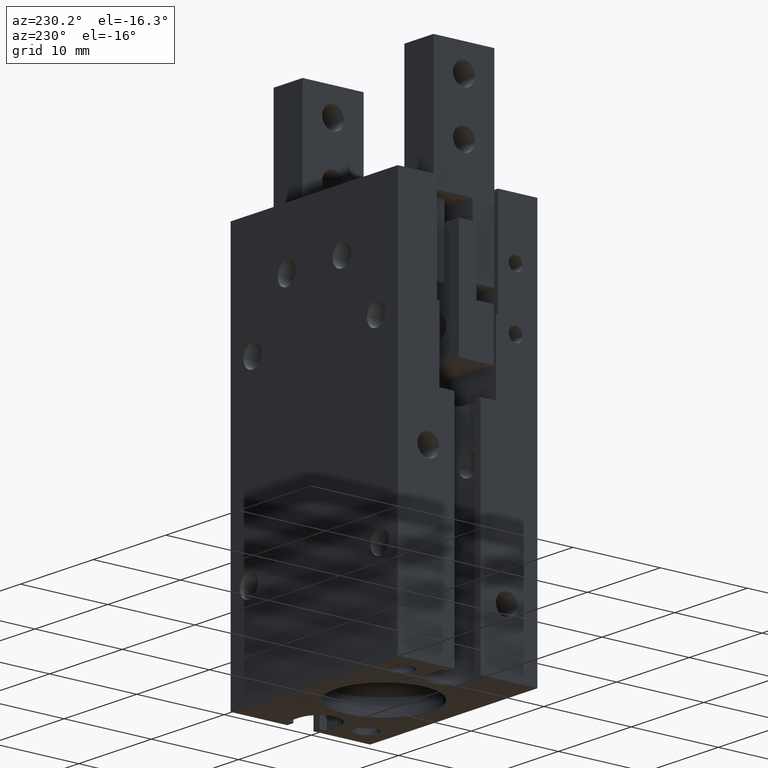
[diagram: clean part render]
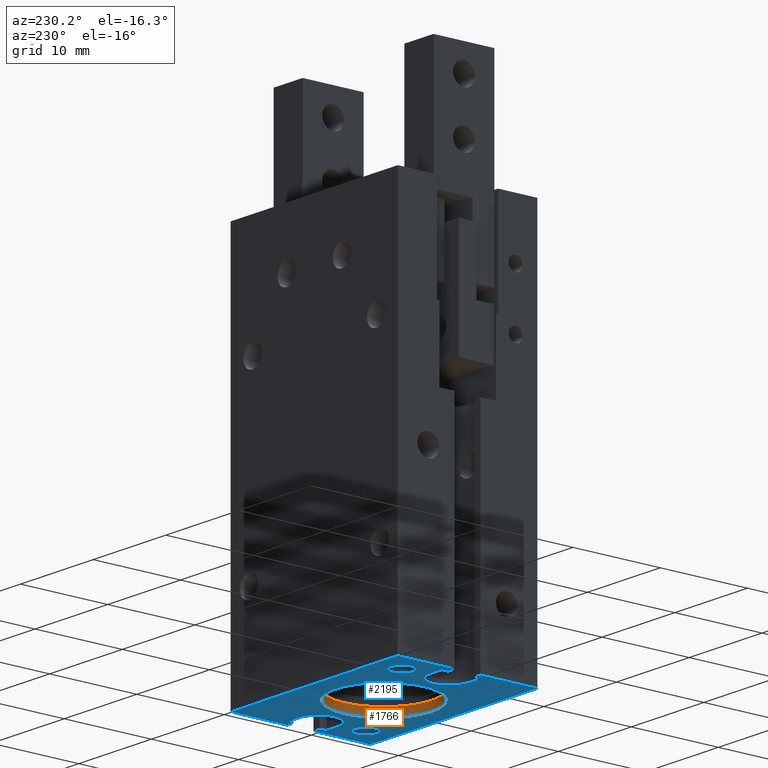
[diagram: same view with the hole feature highlighted: cylindrical wall and planar end face, labeled with their STEP entity ids]
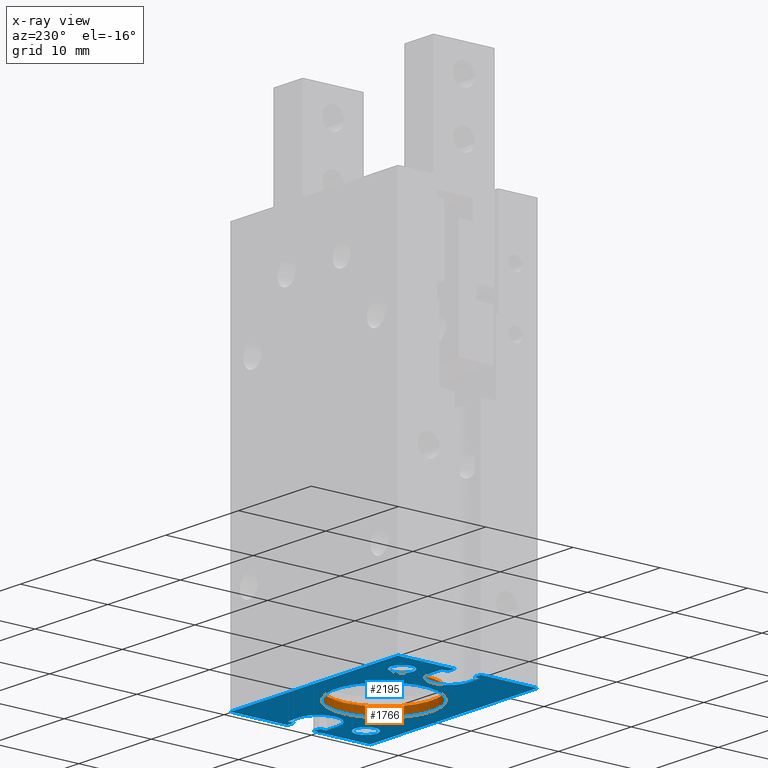
[diagram: x-ray of the same camera — body ghosted, the hole faces saturated]
A machine part, auxiliary view. The highlighted faces form one hole feature of diameter 11 mm: the cylindrical wall (entity #1766, orange) and its adjacent planar end face (entity #2195, blue) — they share a circular edge in the B-rep.
The next image is the same camera in x-ray (body ghosted, the hole faces saturated) — the bore reads through the body.
Wall:
#1681=CARTESIAN_POINT('',(1.88548724333343E-014,5.5,1.));
#1682=VERTEX_POINT('Vertex66',#1681);
#1683=CARTESIAN_POINT('',(5.5,-1.88284404878709E-014,1.));
#1684=VERTEX_POINT('Vertex248',#1683);
#1685=CARTESIAN_POINT('',(8.88178419700125E-016,-4.82947015711943E-015,1.));
#1686=DIRECTION('',(8.07434927000115E-017,4.03717463500055E-017,-1.));
#1687=DIRECTION('',(3.26667163884258E-015,1.,8.07434927000113E-017));
#1688=AXIS2_PLACEMENT_3D('',#1685,#1686,#1687);
#1689=CIRCLE('nurbsCrv631',#1688,5.5);
#1690=EDGE_CURVE('Edge366',#1682,#1684,#1689,.T.);
#1692=CARTESIAN_POINT('',(6.03221176713002E-015,-2.05391259555654E-015,1.));
#1693=DIRECTION('',(8.07434927000115E-017,4.03717463500055E-017,-1.));
#1694=DIRECTION('',(1.,-3.04991416223898E-015,8.07434927000114E-017));
#1695=AXIS2_PLACEMENT_3D('',#1692,#1693,#1694);
#1696=CIRCLE('nurbsCrv632',#1695,5.5);
#1697=EDGE_CURVE('Edge367',#1684,#1682,#1696,.T.);
#1737=ORIENTED_EDGE('Edgeuse732',*,*,#1690,.F.);
#1738=ORIENTED_EDGE('Edgeuse734',*,*,#1697,.F.);
#1739=EDGE_LOOP('',(#1737,#1738));
#1740=FACE_BOUND('',#1739,.T.);
#1741=CARTESIAN_POINT('',(-1.64932722962445E-014,-5.5,-2.57815461158371E-016));
#1742=VERTEX_POINT('Vertex68',#1741);
#1743=CARTESIAN_POINT('',(5.5,-1.70805349204803E-014,0.));
#1744=VERTEX_POINT('Vertex249',#1743);
#1745=CARTESIAN_POINT('',(7.21644966006352E-016,-1.83186799063151E-015,0.));
#1746=DIRECTION('',(0.,0.,1.));
#1747=DIRECTION('',(-3.12998495677288E-015,-1.,0.));
#1748=AXIS2_PLACEMENT_3D('',#1745,#1746,#1747);
#1749=CIRCLE('nurbsCrv635',#1748,5.5);
#1750=EDGE_CURVE('Edge368',#1742,#1744,#1749,.T.);
#1751=ORIENTED_EDGE('Edgeuse737',*,*,#1750,.F.);
#1752=CARTESIAN_POINT('',(-1.68383825401482E-015,-1.66533453693773E-015,0.));
#1753=DIRECTION('',(0.,0.,1.));
#1754=DIRECTION('',(1.,-2.80276370609865E-015,0.));
#1755=AXIS2_PLACEMENT_3D('',#1752,#1753,#1754);
#1756=CIRCLE('nurbsCrv636',#1755,5.5);
#1757=EDGE_CURVE('Edge369',#1744,#1742,#1756,.T.);
#1758=ORIENTED_EDGE('Edgeuse739',*,*,#1757,.F.);
#1759=EDGE_LOOP('',(#1751,#1758));
#1760=FACE_BOUND('',#1759,.T.);
#1761=CARTESIAN_POINT('',(1.23512311489549E-015,-3.99680288865056E-015,
-0.0500000000000007));
#1762=DIRECTION('',(-7.19121731859478E-017,-4.54182146437562E-017,1.));
#1763=DIRECTION('',(1.,-3.44495703600473E-015,7.19121731859477E-017));
#1764=AXIS2_PLACEMENT_3D('',#1761,#1762,#1763);
#1765=CYLINDRICAL_SURFACE('nurbsSrf42',#1764,5.5);
#1766=ADVANCED_FACE('Face42',(#1740,#1760),#1765,.F.);
End face:
#1651=CARTESIAN_POINT('',(-7.24999999999999,5.00000000000003,0.));
#1652=VERTEX_POINT('Vertex244',#1651);
#1653=CARTESIAN_POINT('',(-9.74999999999999,5.00000000000004,
-5.96995597488408E-016));
#1654=VERTEX_POINT('Vertex65',#1653);
#1655=CARTESIAN_POINT('',(-8.49999999999999,5.00000000000003,0.));
#1656=DIRECTION('',(0.,0.,-1.));
#1657=DIRECTION('',(1.,-4.26325641456061E-015,0.));
#1658=AXIS2_PLACEMENT_3D('',#1655,#1656,#1657);
#1659=CIRCLE('nurbsCrv599',#1658,1.25);
#1660=EDGE_CURVE('Edge357',#1652,#1654,#1659,.T.);
#1662=CARTESIAN_POINT('',(-8.49999999999999,5.00000000000003,0.));
#1663=DIRECTION('',(0.,0.,-1.));
#1664=DIRECTION('',(-1.,3.5527136788005E-015,0.));
#1665=AXIS2_PLACEMENT_3D('',#1662,#1663,#1664);
#1666=CIRCLE('nurbsCrv598',#1665,1.25);
#1667=EDGE_CURVE('Edge356',#1654,#1652,#1666,.T.);
#1711=CARTESIAN_POINT('',(9.74999999999998,-5.00000000000003,0.));
#1712=VERTEX_POINT('Vertex246',#1711);
#1713=CARTESIAN_POINT('',(7.24999999999998,-5.00000000000002,
-3.06846941814884E-015));
#1714=VERTEX_POINT('Vertex67',#1713);
#1715=CARTESIAN_POINT('',(8.49999999999998,-5.00000000000002,0.));
#1716=DIRECTION('',(0.,0.,-1.));
#1717=DIRECTION('',(1.,-5.6843418860808E-015,0.));
#1718=AXIS2_PLACEMENT_3D('',#1715,#1716,#1717);
#1719=CIRCLE('nurbsCrv617',#1718,1.25);
#1720=EDGE_CURVE('Edge362',#1712,#1714,#1719,.T.);
#1722=CARTESIAN_POINT('',(8.49999999999999,-5.00000000000003,0.));
#1723=DIRECTION('',(0.,0.,-1.));
#1724=DIRECTION('',(-1.,5.6843418860808E-015,0.));
#1725=AXIS2_PLACEMENT_3D('',#1722,#1723,#1724);
#1726=CIRCLE('nurbsCrv616',#1725,1.25);
#1727=EDGE_CURVE('Edge361',#1714,#1712,#1726,.T.);
#1741=CARTESIAN_POINT('',(-1.64932722962445E-014,-5.5,-2.57815461158371E-016));
#1742=VERTEX_POINT('Vertex68',#1741);
#1743=CARTESIAN_POINT('',(5.5,-1.70805349204803E-014,0.));
#1744=VERTEX_POINT('Vertex249',#1743);
#1745=CARTESIAN_POINT('',(7.21644966006352E-016,-1.83186799063151E-015,0.));
#1746=DIRECTION('',(0.,0.,1.));
#1747=DIRECTION('',(-3.12998495677288E-015,-1.,0.));
#1748=AXIS2_PLACEMENT_3D('',#1745,#1746,#1747);
#1749=CIRCLE('nurbsCrv635',#1748,5.5);
#1750=EDGE_CURVE('Edge368',#1742,#1744,#1749,.T.);
#1752=CARTESIAN_POINT('',(-1.68383825401482E-015,-1.66533453693773E-015,0.));
#1753=DIRECTION('',(0.,0.,1.));
#1754=DIRECTION('',(1.,-2.80276370609865E-015,0.));
#1755=AXIS2_PLACEMENT_3D('',#1752,#1753,#1754);
#1756=CIRCLE('nurbsCrv636',#1755,5.5);
#1757=EDGE_CURVE('Edge369',#1744,#1742,#1756,.T.);
#1926=CARTESIAN_POINT('',(-11.5,-1.5,-7.04148653447867E-016));
#1927=VERTEX_POINT('Vertex78',#1926);
#1928=CARTESIAN_POINT('',(-10.7000000000003,-1.5,-6.55164399294988E-016));
#1929=VERTEX_POINT('Vertex77',#1928);
#1930=CARTESIAN_POINT('',(-11.1000000000001,-1.5,-6.79656526371428E-016));
#1931=DIRECTION('',(1.,0.,6.12303176911189E-017));
#1932=VECTOR('',#1931,1.);
#1933=LINE('nurbsCrv97',#1930,#1932);
#1934=EDGE_CURVE('Edge97',#1927,#1929,#1933,.T.);
#1935=ORIENTED_EDGE('Edgeuse175',*,*,#1934,.T.);
#1936=CARTESIAN_POINT('',(-10.6000000000004,-1.59999999999997,
-6.49041367525882E-016));
#1937=VERTEX_POINT('Vertex79',#1936);
#1938=CARTESIAN_POINT('',(-10.7000000000002,-1.59999999999985,0.));
#1939=DIRECTION('',(0.,0.,-1.));
#1940=DIRECTION('',(-5.68434188608914E-013,1.,0.));
#1941=AXIS2_PLACEMENT_3D('',#1938,#1939,#1940);
#1942=CIRCLE('nurbsCrv98',#1941,0.0999999999998582);
#1943=EDGE_CURVE('Edge98',#1929,#1937,#1942,.T.);
#1944=ORIENTED_EDGE('Edgeuse176',*,*,#1943,.T.);
#1945=CARTESIAN_POINT('',(-10.6000000000004,-2.09999999999997,
-6.49041367525882E-016));
#1946=VERTEX_POINT('Vertex80',#1945);
#1947=CARTESIAN_POINT('',(-10.6000000000004,-1.84999999999997,
-6.49041367525882E-016));
#1948=DIRECTION('',(0.,-1.,0.));
#1949=VECTOR('',#1948,1.);
#1950=LINE('nurbsCrv99',#1947,#1949);
#1951=EDGE_CURVE('Edge99',#1937,#1946,#1950,.T.);
#1952=ORIENTED_EDGE('Edgeuse177',*,*,#1951,.T.);
#1953=CARTESIAN_POINT('',(-10.5,-2.19999999999999,-6.42918335756748E-016));
#1954=VERTEX_POINT('Vertex81',#1953);
#1955=CARTESIAN_POINT('',(-10.4999999999999,-2.09999999999954,0.));
#1956=DIRECTION('',(0.,0.,1.));
#1957=DIRECTION('',(-1.,-4.28990176713219E-012,0.));
#1958=AXIS2_PLACEMENT_3D('',#1955,#1956,#1957);
#1959=CIRCLE('nurbsCrv100',#1958,0.100000000000438);
#1960=EDGE_CURVE('Edge100',#1946,#1954,#1959,.T.);
#1961=ORIENTED_EDGE('Edgeuse178',*,*,#1960,.T.);
#1962=CARTESIAN_POINT('',(-9.,-2.19999999999999,-5.5107285922007E-016));
#1963=VERTEX_POINT('Vertex82',#1962);
#1964=CARTESIAN_POINT('',(-9.75,-2.19999999999999,-5.96995597488409E-016));
#1965=DIRECTION('',(1.,0.,6.12303176911189E-017));
#1966=VECTOR('',#1965,1.);
#1967=LINE('nurbsCrv101',#1964,#1966);
#1968=EDGE_CURVE('Edge101',#1954,#1963,#1967,.T.);
#1969=ORIENTED_EDGE('Edgeuse179',*,*,#1968,.T.);
#1970=CARTESIAN_POINT('',(-9.,2.19999999999999,-5.5107285922007E-016));
#1971=VERTEX_POINT('Vertex83',#1970);
#1972=CARTESIAN_POINT('',(-8.99999999999999,-1.66533453693773E-016,0.));
#1973=DIRECTION('',(0.,0.,1.));
#1974=DIRECTION('',(-6.45947941600094E-015,-1.,0.));
#1975=AXIS2_PLACEMENT_3D('',#1972,#1973,#1974);
#1976=CIRCLE('nurbsCrv102',#1975,2.19999999999999);
#1977=EDGE_CURVE('Edge102',#1963,#1971,#1976,.T.);
#1978=ORIENTED_EDGE('Edgeuse180',*,*,#1977,.T.);
#1979=CARTESIAN_POINT('',(-10.5,2.19999999999999,-6.42918335756748E-016));
#1980=VERTEX_POINT('Vertex84',#1979);
#1981=CARTESIAN_POINT('',(-9.75,2.19999999999999,-5.96995597488409E-016));
#1982=DIRECTION('',(-1.,0.,-6.12303176911189E-017));
#1983=VECTOR('',#1982,1.);
#1984=LINE('nurbsCrv103',#1981,#1983);
#1985=EDGE_CURVE('Edge103',#1971,#1980,#1984,.T.);
#1986=ORIENTED_EDGE('Edgeuse181',*,*,#1985,.T.);
#1987=CARTESIAN_POINT('',(-10.5999999999999,2.10000000000002,
-6.49041367525854E-016));
#1988=VERTEX_POINT('Vertex85',#1987);
#1989=CARTESIAN_POINT('',(-10.5000000000001,2.10000000000013,0.));
#1990=DIRECTION('',(0.,0.,1.));
#1991=DIRECTION('',(5.32907051820849E-013,1.,0.));
#1992=AXIS2_PLACEMENT_3D('',#1989,#1990,#1991);
#1993=CIRCLE('nurbsCrv104',#1992,0.0999999999998596);
#1994=EDGE_CURVE('Edge104',#1980,#1988,#1993,.T.);
#1995=ORIENTED_EDGE('Edgeuse182',*,*,#1994,.T.);
#1996=CARTESIAN_POINT('',(-10.5999999999999,1.59999999999997,
-6.49041367525854E-016));
#1997=VERTEX_POINT('Vertex86',#1996);
#1998=CARTESIAN_POINT('',(-10.5999999999999,1.84999999999999,
-6.49041367525854E-016));
#1999=DIRECTION('',(0.,-1.,0.));
#2000=VECTOR('',#1999,1.);
#2001=LINE('nurbsCrv105',#1998,#2000);
#2002=EDGE_CURVE('Edge105',#1988,#1997,#2001,.T.);
#2003=ORIENTED_EDGE('Edgeuse183',*,*,#2002,.T.);
#2004=CARTESIAN_POINT('',(-10.7000000000003,1.49999999999994,
-6.55164399294988E-016));
#2005=VERTEX_POINT('Vertex87',#2004);
#2006=CARTESIAN_POINT('',(-10.7000000000004,1.60000000000039,0.));
#2007=DIRECTION('',(0.,0.,-1.));
#2008=DIRECTION('',(1.,-4.28101998293523E-012,0.));
#2009=AXIS2_PLACEMENT_3D('',#2006,#2007,#2008);
#2010=CIRCLE('nurbsCrv106',#2009,0.100000000000437);
#2011=EDGE_CURVE('Edge106',#1997,#2005,#2010,.T.);
#2012=ORIENTED_EDGE('Edgeuse184',*,*,#2011,.T.);
#2013=CARTESIAN_POINT('',(-11.5,1.5,-7.04148653447867E-016));
#2014=VERTEX_POINT('Vertex88',#2013);
#2015=CARTESIAN_POINT('',(-11.1000000000001,1.49999999999997,
-6.79656526371428E-016));
#2016=DIRECTION('',(-1.,7.10542735760343E-014,-6.12303176911189E-017));
#2017=VECTOR('',#2016,1.);
#2018=LINE('nurbsCrv107',#2015,#2017);
#2019=EDGE_CURVE('Edge107',#2005,#2014,#2018,.T.);
#2020=ORIENTED_EDGE('Edgeuse185',*,*,#2019,.T.);
#2021=CARTESIAN_POINT('',(-11.5,8.00000000000004,-2.52184864976738E-016));
#2022=VERTEX_POINT('Vertex89',#2021);
#2023=CARTESIAN_POINT('',(-11.5,4.75000000000002,-4.78166759212303E-016));
#2024=DIRECTION('',(3.55271367880048E-015,1.,6.95328905340194E-017));
#2025=VECTOR('',#2024,1.);
#2026=LINE('nurbsCrv108',#2023,#2025);
#2027=EDGE_CURVE('Edge108',#2014,#2022,#2026,.T.);
#2028=ORIENTED_EDGE('Edgeuse186',*,*,#2027,.T.);
#2029=CARTESIAN_POINT('',(-6.26470588000004,7.99999997333337,
9.36173233220365E-016));
#2030=VERTEX_POINT('Vertex90',#2029);
#2031=CARTESIAN_POINT('',(-8.88235294000001,7.9999999866667,
3.41994184121814E-016));
#2032=DIRECTION('',(1.,-5.09363320830931E-009,2.26989748991814E-016));
#2033=VECTOR('',#2032,1.);
#2034=LINE('nurbsCrv109',#2031,#2033);
#2035=EDGE_CURVE('Edge109',#2022,#2030,#2034,.T.);
#2036=ORIENTED_EDGE('Edgeuse187',*,*,#2035,.T.);
#2037=CARTESIAN_POINT('',(6.26470587999998,7.99999994000002,
1.68463253825642E-015));
#2038=VERTEX_POINT('Vertex91',#2037);
#2039=CARTESIAN_POINT('',(-3.37507799486048E-014,7.99999995666669,
1.31040288573839E-015));
#2040=DIRECTION('',(1.,-2.66040845374337E-009,5.97361886872858E-017));
#2041=VECTOR('',#2040,1.);
#2042=LINE('nurbsCrv110',#2039,#2041);
#2043=EDGE_CURVE('Edge110',#2030,#2038,#2042,.T.);
#2044=ORIENTED_EDGE('Edgeuse188',*,*,#2043,.T.);
#2045=CARTESIAN_POINT('',(11.5,7.99999996211179,-1.70471286166246E-017));
#2046=VERTEX_POINT('Vertex92',#2045);
#2047=CARTESIAN_POINT('',(8.88235294,7.99999995105591,8.337927048199E-016));
#2048=DIRECTION('',(1.,4.22359773931325E-009,-3.25039936222921E-016));
#2049=VECTOR('',#2048,1.);
#2050=LINE('nurbsCrv111',#2047,#2049);
#2051=EDGE_CURVE('Edge111',#2038,#2046,#2050,.T.);
#2052=ORIENTED_EDGE('Edgeuse189',*,*,#2051,.T.);
#2053=CARTESIAN_POINT('',(11.5,1.5,7.04148653447867E-016));
#2054=VERTEX_POINT('Vertex93',#2053);
#2055=CARTESIAN_POINT('',(11.5,4.7499999810559,3.43550762415621E-016));
#2056=DIRECTION('',(-4.09928503789513E-015,-1.,1.10953197887432E-016));
#2057=VECTOR('',#2056,1.);
#2058=LINE('nurbsCrv112',#2055,#2057);
#2059=EDGE_CURVE('Edge112',#2046,#2054,#2058,.T.);
#2060=ORIENTED_EDGE('Edgeuse190',*,*,#2059,.T.);
#2061=CARTESIAN_POINT('',(10.6999999999998,1.49999999999994,
6.55164399294961E-016));
#2062=VERTEX_POINT('Vertex94',#2061);
#2063=CARTESIAN_POINT('',(11.0999999999999,1.49999999999997,
6.79656526371414E-016));
#2064=DIRECTION('',(-1.,-7.10542735759939E-014,-6.12303176911189E-017));
#2065=VECTOR('',#2064,1.);
#2066=LINE('nurbsCrv113',#2063,#2065);
#2067=EDGE_CURVE('Edge113',#2054,#2062,#2066,.T.);
#2068=ORIENTED_EDGE('Edgeuse191',*,*,#2067,.T.);
#2069=CARTESIAN_POINT('',(10.5999999999999,1.59999999999997,
6.49041367525854E-016));
#2070=VERTEX_POINT('Vertex95',#2069);
#2071=CARTESIAN_POINT('',(10.6999999999998,1.59999999999986,0.));
#2072=DIRECTION('',(0.,0.,-1.));
#2073=DIRECTION('',(-1.24344978758115E-013,-1.,0.));
#2074=AXIS2_PLACEMENT_3D('',#2071,#2072,#2073);
#2075=CIRCLE('nurbsCrv114',#2074,0.0999999999999249);
#2076=EDGE_CURVE('Edge114',#2062,#2070,#2075,.T.);
#2077=ORIENTED_EDGE('Edgeuse192',*,*,#2076,.T.);
#2078=CARTESIAN_POINT('',(10.5999999999999,2.09999999999997,
6.49041367525854E-016));
#2079=VERTEX_POINT('Vertex96',#2078);
#2080=CARTESIAN_POINT('',(10.5999999999999,1.84999999999997,
6.49041367525854E-016));
#2081=DIRECTION('',(0.,1.,0.));
#2082=VECTOR('',#2081,1.);
#2083=LINE('nurbsCrv115',#2080,#2082);
#2084=EDGE_CURVE('Edge115',#2070,#2079,#2083,.T.);
#2085=ORIENTED_EDGE('Edgeuse193',*,*,#2084,.T.);
#2086=CARTESIAN_POINT('',(10.5,2.19999999999999,6.42918335756748E-016));
#2087=VERTEX_POINT('Vertex97',#2086);
#2088=CARTESIAN_POINT('',(10.5,2.10000000000007,0.));
#2089=DIRECTION('',(0.,0.,1.));
#2090=DIRECTION('',(1.,-1.02140518265596E-012,0.));
#2091=AXIS2_PLACEMENT_3D('',#2088,#2089,#2090);
#2092=CIRCLE('nurbsCrv116',#2091,0.0999999999999232);
#2093=EDGE_CURVE('Edge116',#2079,#2087,#2092,.T.);
#2094=ORIENTED_EDGE('Edgeuse194',*,*,#2093,.T.);
#2095=CARTESIAN_POINT('',(9.,2.19999999999999,5.5107285922007E-016));
#2096=VERTEX_POINT('Vertex98',#2095);
#2097=CARTESIAN_POINT('',(9.75,2.19999999999999,5.96995597488409E-016));
#2098=DIRECTION('',(-1.,0.,-6.12303176911189E-017));
#2099=VECTOR('',#2098,1.);
#2100=LINE('nurbsCrv117',#2097,#2099);
#2101=EDGE_CURVE('Edge117',#2087,#2096,#2100,.T.);
#2102=ORIENTED_EDGE('Edgeuse195',*,*,#2101,.T.);
#2103=CARTESIAN_POINT('',(9.,-2.19999999999999,5.5107285922007E-016));
#2104=VERTEX_POINT('Vertex99',#2103);
#2105=CARTESIAN_POINT('',(8.99999999999999,1.66533453693773E-016,0.));
#2106=DIRECTION('',(0.,0.,1.));
#2107=DIRECTION('',(6.45947941600094E-015,1.,0.));
#2108=AXIS2_PLACEMENT_3D('',#2105,#2106,#2107);
#2109=CIRCLE('nurbsCrv118',#2108,2.19999999999999);
#2110=EDGE_CURVE('Edge118',#2096,#2104,#2109,.T.);
#2111=ORIENTED_EDGE('Edgeuse196',*,*,#2110,.T.);
#2112=CARTESIAN_POINT('',(10.5,-2.19999999999999,6.42918335756748E-016));
#2113=VERTEX_POINT('Vertex100',#2112);
#2114=CARTESIAN_POINT('',(9.75,-2.19999999999999,5.96995597488409E-016));
#2115=DIRECTION('',(1.,0.,6.12303176911189E-017));
#2116=VECTOR('',#2115,1.);
#2117=LINE('nurbsCrv119',#2114,#2116);
#2118=EDGE_CURVE('Edge119',#2104,#2113,#2117,.T.);
#2119=ORIENTED_EDGE('Edgeuse197',*,*,#2118,.T.);
#2120=CARTESIAN_POINT('',(10.5999999999999,-2.09999999999997,
6.49041367525854E-016));
#2121=VERTEX_POINT('Vertex101',#2120);
#2122=CARTESIAN_POINT('',(10.5,-2.10000000000007,0.));
#2123=DIRECTION('',(0.,0.,1.));
#2124=DIRECTION('',(1.24344978758116E-013,-1.,0.));
#2125=AXIS2_PLACEMENT_3D('',#2122,#2123,#2124);
#2126=CIRCLE('nurbsCrv120',#2125,0.0999999999999235);
#2127=EDGE_CURVE('Edge120',#2113,#2121,#2126,.T.);
#2128=ORIENTED_EDGE('Edgeuse198',*,*,#2127,.T.);
#2129=CARTESIAN_POINT('',(10.5999999999999,-1.59999999999997,
6.49041367525854E-016));
#2130=VERTEX_POINT('Vertex102',#2129);
#2131=CARTESIAN_POINT('',(10.5999999999999,-1.84999999999997,
6.49041367525854E-016));
#2132=DIRECTION('',(0.,1.,0.));
#2133=VECTOR('',#2132,1.);
#2134=LINE('nurbsCrv121',#2131,#2133);
#2135=EDGE_CURVE('Edge121',#2121,#2130,#2134,.T.);
#2136=ORIENTED_EDGE('Edgeuse199',*,*,#2135,.T.);
#2137=CARTESIAN_POINT('',(10.6999999999998,-1.5,6.55164399294961E-016));
#2138=VERTEX_POINT('Vertex103',#2137);
#2139=CARTESIAN_POINT('',(10.6999999999998,-1.59999999999985,0.));
#2140=DIRECTION('',(0.,0.,-1.));
#2141=DIRECTION('',(-1.,-1.1235457009223E-012,0.));
#2142=AXIS2_PLACEMENT_3D('',#2139,#2140,#2141);
#2143=CIRCLE('nurbsCrv122',#2142,0.0999999999998576);
#2144=EDGE_CURVE('Edge122',#2130,#2138,#2143,.T.);
#2145=ORIENTED_EDGE('Edgeuse200',*,*,#2144,.T.);
#2146=CARTESIAN_POINT('',(11.5,-1.5,7.04148653447867E-016));
#2147=VERTEX_POINT('Vertex104',#2146);
#2148=CARTESIAN_POINT('',(11.0999999999999,-1.5,6.79656526371414E-016));
#2149=DIRECTION('',(1.,0.,6.12303176911189E-017));
#2150=VECTOR('',#2149,1.);
#2151=LINE('nurbsCrv123',#2148,#2150);
#2152=EDGE_CURVE('Edge123',#2138,#2147,#2151,.T.);
#2153=ORIENTED_EDGE('Edgeuse201',*,*,#2152,.T.);
#2154=CARTESIAN_POINT('',(11.5000000038333,-8.00000000000004,
4.77510306717463E-016));
#2155=VERTEX_POINT('Vertex105',#2154);
#2156=CARTESIAN_POINT('',(11.5000000019167,-4.75000000000002,
5.90829480082665E-016));
#2157=DIRECTION('',(5.89739812539844E-010,-1.,-3.48674379585235E-017));
#2158=VECTOR('',#2157,1.);
#2159=LINE('nurbsCrv124',#2156,#2158);
#2160=EDGE_CURVE('Edge124',#2147,#2155,#2159,.T.);
#2161=ORIENTED_EDGE('Edgeuse202',*,*,#2160,.T.);
#2162=CARTESIAN_POINT('',(-11.5,-7.99999999999996,-7.04148653447869E-016));
#2163=VERTEX_POINT('Vertex106',#2162);
#2164=CARTESIAN_POINT('',(1.91664106807821E-009,-8.,-1.13319173365203E-016));
#2165=DIRECTION('',(1.,-3.28239850704035E-015,5.13764765203647E-017));
#2166=VECTOR('',#2165,1.);
#2167=LINE('nurbsCrv125',#2164,#2166);
#2168=EDGE_CURVE('Edge125',#2163,#2155,#2167,.T.);
#2169=ORIENTED_EDGE('Edgeuse203',*,*,#2168,.F.);
#2170=CARTESIAN_POINT('',(-11.5,-4.74999999999998,-7.04148653447868E-016));
#2171=DIRECTION('',(4.0992850140006E-015,1.,2.57896834399179E-031));
#2172=VECTOR('',#2171,1.);
#2173=LINE('nurbsCrv126',#2170,#2172);
#2174=EDGE_CURVE('Edge126',#2163,#1927,#2173,.T.);
#2175=ORIENTED_EDGE('Edgeuse204',*,*,#2174,.T.);
#2176=EDGE_LOOP('',(#1935,#1944,#1952,#1961,#1969,#1978,#1986,#1995,#2003,#2012
,#2020,#2028,#2036,#2044,#2052,#2060,#2068,#2077,#2085,#2094,#2102,#2111,#2119,
#2128,#2136,#2145,#2153,#2161,#2169,#2175));
#2177=FACE_OUTER_BOUND('',#2176,.T.);
#2178=ORIENTED_EDGE('Edgeuse724',*,*,#1720,.F.);
#2179=ORIENTED_EDGE('Edgeuse722',*,*,#1727,.F.);
#2180=EDGE_LOOP('',(#2178,#2179));
#2181=FACE_BOUND('',#2180,.T.);
#2182=ORIENTED_EDGE('Edgeuse714',*,*,#1660,.F.);
#2183=ORIENTED_EDGE('Edgeuse712',*,*,#1667,.F.);
#2184=EDGE_LOOP('',(#2182,#2183));
#2185=FACE_BOUND('',#2184,.T.);
#2186=ORIENTED_EDGE('Edgeuse736',*,*,#1750,.T.);
#2187=ORIENTED_EDGE('Edgeuse738',*,*,#1757,.T.);
#2188=EDGE_LOOP('',(#2186,#2187));
#2189=FACE_BOUND('',#2188,.T.);
#2190=CARTESIAN_POINT('',(1.91664195625663E-009,4.44089209850063E-016,
1.17356470287014E-025));
#2191=DIRECTION('',(6.12303176911191E-017,6.12303176911189E-017,-1.));
#2192=DIRECTION('',(-1.,7.02117327709166E-017,-6.12303176911191E-017));
#2193=AXIS2_PLACEMENT_3D('',#2190,#2191,#2192);
#2194=PLANE('nurbsSrf46',#2193);
#2195=ADVANCED_FACE('Face46',(#2177,#2181,#2185,#2189),#2194,.T.);